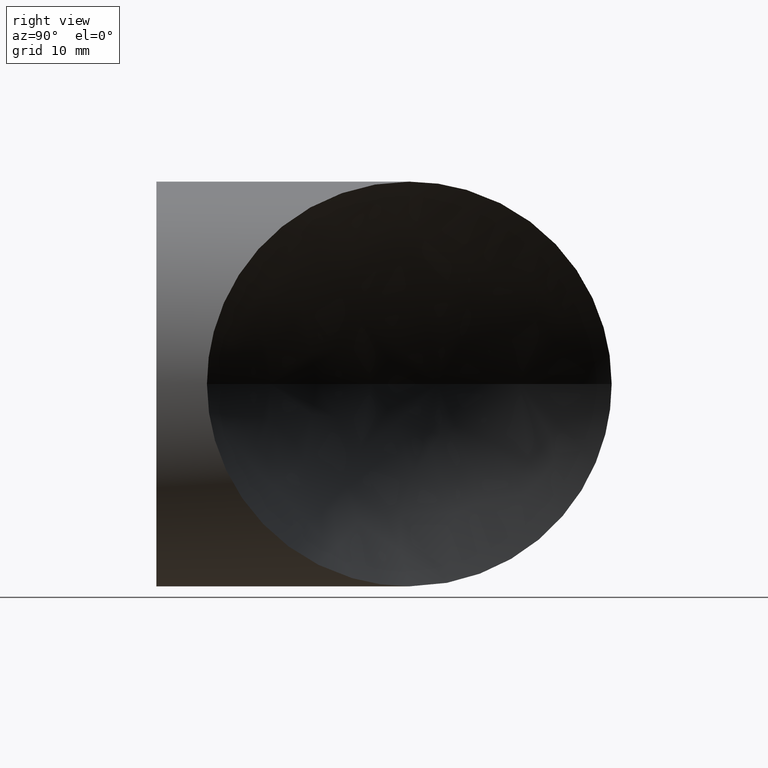
[diagram: clean part render]
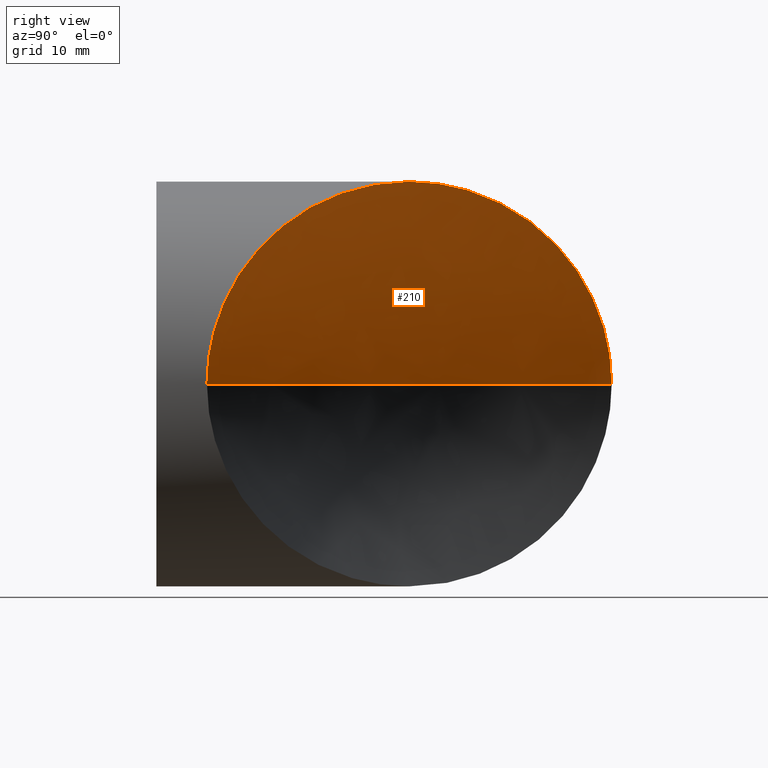
[diagram: same view with one face highlighted and labeled with its STEP entity id]
A machine part, right view. The second image highlights one B-rep face of the part: STEP entity #210.
In plain terms, the highlighted face is a freeform B-spline surface patch.
Its self-contained STEP definition (entity closure, byte-faithful):
#4 = CARTESIAN_POINT ( 'NONE',  ( 23.11608779368936339, 8.633912206318735016, 10.53705452664367748 ) ) ;
#9 = CARTESIAN_POINT ( 'NONE',  ( -24.91912955028689680, 56.66912955033638610, 5.016703429672753067 ) ) ;
#12 = B_SPLINE_CURVE_WITH_KNOTS ( 'NONE', 3,
 ( #603, #735, #359, #289, #422, #696, #9, #504, #90, #510, #171, #314, #631, #231, #701, #706, #307, #768, #840, #522, #109, #585, #453, #534, #127, #601, #829, #491, #677, #616, #686, #560 ),
 .UNSPECIFIED., .F., .F.,
 ( 4, 2, 2, 2, 2, 2, 2, 2, 2, 2, 2, 2, 2, 2, 2, 4 ),
 ( 0.04810272725895906737, 0.04960341340593291820, 0.05110409955290677597, 0.05410547184685447764, 0.05560615799382832847, 0.05710684414080217930, 0.06010821643474988096, 0.06160890258172372486, 0.06310958872869756875, 0.06611096102264527041, 0.07211370561054067374, 0.07811645019843607707, 0.08411919478633148040, 0.08712056708027918206, 0.09012193937422688372, 0.09612468396212230093 ),
 .UNSPECIFIED. ) ;
#22 = CARTESIAN_POINT ( 'NONE',  ( -1.517883041479706208E-13, 18.89668560001696918, -2.373101715136272105E-12 ) ) ;
#36 = CARTESIAN_POINT ( 'NONE',  ( -4.343747583845909616E-12, 31.75000000003258549, 25.39999999999973568 ) ) ;
#44 = CARTESIAN_POINT ( 'NONE',  ( 18.75366693860043554, 12.99633306141087985, 17.21739479121827898 ) ) ;
#69 = EDGE_CURVE ( 'NONE', #303, #342, #370, .T. ) ;
#80 = CARTESIAN_POINT ( 'NONE',  ( 23.49180749685926983, 8.258192503148499952, 9.670471214657705872 ) ) ;
#90 = CARTESIAN_POINT ( 'NONE',  ( -24.44232522460061929, 56.19232522465010504, 6.926193841207946456 ) ) ;
#109 = CARTESIAN_POINT ( 'NONE',  ( -17.60734394690690507, 49.35734394695076332, 18.37816237363596272 ) ) ;
#111 = FACE_OUTER_BOUND ( 'NONE', #583, .T. ) ;
#127 = CARTESIAN_POINT ( 'NONE',  ( -9.862800616184090430, 41.61280061622073134, 23.45310829498336957 ) ) ;
#131 = CARTESIAN_POINT ( 'NONE',  ( 2.858770735336378710, 28.89122926468965247, 25.24882967334772843 ) ) ;
#140 = ORIENTED_EDGE ( 'NONE', *, *, #297, .F. ) ;
#149 = VERTEX_POINT ( 'NONE', #232 ) ;
#165 = CARTESIAN_POINT ( 'NONE',  ( 24.45451196593075593, 7.295488034076068828, 6.935761289269316343 ) ) ;
#171 = CARTESIAN_POINT ( 'NONE',  ( -24.00169820278755139, 55.75169820283742439, 8.325231285725502417 ) ) ;
#174 =( BOUNDED_SURFACE ( )  B_SPLINE_SURFACE ( 2, 3, ( 
 ( #851, #374, #711, #319 ),
 ( #511, #838, #772, #22 ),
 ( #518, #438, #382, #635 ) ),
 .UNSPECIFIED., .F., .F., .F. ) 
 B_SPLINE_SURFACE_WITH_KNOTS ( ( 3, 3 ),
 ( 4, 4 ),
 ( 0.4962049995256900825, 0.4987551592069660034 ),
 ( 0.0000000000000000000, 1.000000000000000000 ),
 .UNSPECIFIED. ) 
 GEOMETRIC_REPRESENTATION_ITEM ( )  RATIONAL_B_SPLINE_SURFACE ( (
 ( 1.000000000000000000, 0.9761968358346008179, 0.9761968358346008179, 1.000000000000000000),
 ( 1.000000000000000000, 0.9761968358346008179, 0.9761968358346008179, 1.000000000000000000),
 ( 1.000000000000000000, 0.9761968358346008179, 0.9761968358346008179, 1.000000000000000000) ) ) 
 REPRESENTATION_ITEM ( '' )  SURFACE ( )  );
#192 = CARTESIAN_POINT ( 'NONE',  ( -25.39999999999913527, 57.15000000004933156, -3.778634764336981084E-12 ) ) ;
#204 = CARTESIAN_POINT ( 'NONE',  ( 12.84298988541444864, 18.90701011460226511, 21.91716930012565356 ) ) ;
#210 = ADVANCED_FACE ( 'NONE', ( #111 ), #174, .T. ) ;
#224 = CARTESIAN_POINT ( 'NONE',  ( 25.39999999999953673, 6.350000000006544632, 1.008915357888921172 ) ) ;
#226 = CARTESIAN_POINT ( 'NONE',  ( 22.91856478368881511, 8.831435216319798442, 10.95957008676527700 ) ) ;
#231 = CARTESIAN_POINT ( 'NONE',  ( -22.50743737487468366, 54.25743737492236107, 11.78087464265472128 ) ) ;
#232 = CARTESIAN_POINT ( 'NONE',  ( -25.39999999999913527, 57.15000000004933156, -3.778634764336981084E-12 ) ) ;
#246 = ORIENTED_EDGE ( 'NONE', *, *, #430, .T. ) ;
#259 = CARTESIAN_POINT ( 'NONE',  ( 25.40000000000046754, 6.350000000005628920, 2.310600058712741191E-11 ) ) ;
#268 = CARTESIAN_POINT ( 'NONE',  ( 13.17241457464497500, 18.57758542537235869, 21.72089280077771178 ) ) ;
#273 = CARTESIAN_POINT ( 'NONE',  ( 20.87945820684569398, 10.87054179316435487, 14.47070441000486340 ) ) ;
#289 = CARTESIAN_POINT ( 'NONE',  ( -25.32415586706389732, 57.07415586711366728, 2.026326229893380404 ) ) ;
#294 = CARTESIAN_POINT ( 'NONE',  ( 25.34003501376936285, 6.409964986235826778, 2.019679683148877469 ) ) ;
#297 = EDGE_CURVE ( 'NONE', #149, #342, #434, .T. ) ;
#303 = VERTEX_POINT ( 'NONE', #36 ) ;
#307 = CARTESIAN_POINT ( 'NONE',  ( -21.60348923600244575, 53.35348923604993843, 13.36597650318471864 ) ) ;
#314 = CARTESIAN_POINT ( 'NONE',  ( -23.50350774278324195, 55.25350774283266730, 9.678279500985645711 ) ) ;
#319 = CARTESIAN_POINT ( 'NONE',  ( -25.70479999999951204, 57.60811440004953710, -3.642919299551294898E-12 ) ) ;
#342 = VERTEX_POINT ( 'NONE', #259 ) ;
#343 = CARTESIAN_POINT ( 'NONE',  ( 14.15460011604927182, 17.59539988396674914, 21.09411549236753558 ) ) ;
#359 = CARTESIAN_POINT ( 'NONE',  ( -25.38498825607588572, 57.13498825612569476, 1.010564004994352949 ) ) ;
#370 = B_SPLINE_CURVE_WITH_KNOTS ( 'NONE', 3,
 ( #736, #798, #533, #131, #540, #803, #872, #542, #666, #204, #268, #734, #343, #399, #469, #669, #44, #868, #471, #273, #405, #877, #702, #226, #4, #80, #566, #561, #165, #836, #810, #294, #224, #626 ),
 .UNSPECIFIED., .F., .F.,
 ( 4, 2, 2, 2, 2, 2, 2, 2, 2, 2, 2, 2, 2, 2, 2, 2, 4 ),
 ( 0.09612468396212230093, 0.09912765318120356217, 0.1021306224002848234, 0.1081365608384473459, 0.1141424992766098684, 0.1156439838861504921, 0.1171454684956911296, 0.1201484377147723770, 0.1261543761529348717, 0.1276558607624755093, 0.1291573453720161191, 0.1321603145910973665, 0.1336617992006380040, 0.1351632838101786138, 0.1381662530292598612, 0.1411692222483411085, 0.1441721914674223282 ),
 .UNSPECIFIED. ) ;
#374 = CARTESIAN_POINT ( 'NONE',  ( -22.04048544500165363, 57.60811440004954420, 27.17898011060574959 ) ) ;
#382 = CARTESIAN_POINT ( 'NONE',  ( 25.70479999999900045, 6.198514400005624481, 4.538667477538768757 ) ) ;
#392 = CARTESIAN_POINT ( 'NONE',  ( 25.40000000000046754, 6.350000000005628920, 2.310600058712741191E-11 ) ) ;
#399 = CARTESIAN_POINT ( 'NONE',  ( 15.12322275977875030, 16.62677724023642511, 20.42218853993120220 ) ) ;
#405 = CARTESIAN_POINT ( 'NONE',  ( 21.12816750881075123, 10.62183249119944861, 14.10527043395201829 ) ) ;
#422 = CARTESIAN_POINT ( 'NONE',  ( -25.27816902003225152, 57.02816902008233058, 2.535475448995691661 ) ) ;
#430 = EDGE_CURVE ( 'NONE', #149, #303, #12, .T. ) ;
#434 = B_SPLINE_CURVE_WITH_KNOTS ( 'NONE', 2,
 ( #192, #459, #392 ),
 .UNSPECIFIED., .F., .F.,
 ( 3, 3 ),
 ( 0.4962201190494920922, 0.4987400396831639937 ),
 .UNSPECIFIED. ) ;
#438 = CARTESIAN_POINT ( 'NONE',  ( 26.90677303464002179, 6.198514400005624481, 8.915282984488634099 ) ) ;
#453 = CARTESIAN_POINT ( 'NONE',  ( -13.85126286655807171, 45.60126286659910022, 21.34471803107061660 ) ) ;
#459 = CARTESIAN_POINT ( 'NONE',  ( 3.816391647148975608E-13, 19.05000000001672689, 0.0000000000000000000 ) ) ;
#469 = CARTESIAN_POINT ( 'NONE',  ( 15.75322996234837447, 15.99677003766594297, 19.94088469937085861 ) ) ;
#471 = CARTESIAN_POINT ( 'NONE',  ( 20.36646652801032076, 11.38353347200018995, 15.18420568540170557 ) ) ;
#491 = CARTESIAN_POINT ( 'NONE',  ( -5.671297475158661783, 37.42129747519129523, 24.76944659085221545 ) ) ;
#504 = CARTESIAN_POINT ( 'NONE',  ( -24.57160009191174765, 56.32160009196092432, 6.452832837949221023 ) ) ;
#510 = CARTESIAN_POINT ( 'NONE',  ( -24.15743513471668535, 55.90743513476594728, 7.862426548025158723 ) ) ;
#511 = CARTESIAN_POINT ( 'NONE',  ( 7.125681820900797270, 18.89668560001696918, 25.94598102964734565 ) ) ;
#518 = CARTESIAN_POINT ( 'NONE',  ( 29.22488681952441070, 6.198514400005624481, 12.81731462864621385 ) ) ;
#522 = CARTESIAN_POINT ( 'NONE',  ( -18.76615306822672835, 50.51615306827064700, 17.20202532302760545 ) ) ;
#533 = CARTESIAN_POINT ( 'NONE',  ( 1.427272103732073028, 30.32272789629522691, 25.37003871366476560 ) ) ;
#534 = CARTESIAN_POINT ( 'NONE',  ( -11.21629007288509605, 42.96629007292380464, 22.83964333839958982 ) ) ;
#540 = CARTESIAN_POINT ( 'NONE',  ( 3.574495887738063704, 28.17550411228712548, 25.15748655172709647 ) ) ;
#542 = CARTESIAN_POINT ( 'NONE',  ( 9.838007526092477306, 21.91199247392712834, 23.46256244877612218 ) ) ;
#560 = CARTESIAN_POINT ( 'NONE',  ( -4.343747583845909616E-12, 31.75000000003258549, 25.39999999999973568 ) ) ;
#561 = CARTESIAN_POINT ( 'NONE',  ( 24.17058905248307710, 7.579410947524475084, 7.866010588764352995 ) ) ;
#566 = CARTESIAN_POINT ( 'NONE',  ( 23.67062844457653981, 8.079371555431473340, 9.224653027104404046 ) ) ;
#583 = EDGE_LOOP ( 'NONE', ( #140, #246, #873 ) ) ;
#585 = CARTESIAN_POINT ( 'NONE',  ( -15.13432881798463825, 46.88432881802634000, 20.46283226548875334 ) ) ;
#601 = CARTESIAN_POINT ( 'NONE',  ( -7.783134573733062389, 39.53313457376789586, 24.18932817132038693 ) ) ;
#603 = CARTESIAN_POINT ( 'NONE',  ( -25.39999999999913527, 57.15000000004933156, -3.778634764336981084E-12 ) ) ;
#616 = CARTESIAN_POINT ( 'NONE',  ( -2.844736194571884536, 34.59473619460251825, 25.28091507878869848 ) ) ;
#626 = CARTESIAN_POINT ( 'NONE',  ( 25.40000000000046754, 6.350000000005628920, 2.310600058712741191E-11 ) ) ;
#631 = CARTESIAN_POINT ( 'NONE',  ( -23.12815982557323480, 54.87815982562143802, 10.54055032728178176 ) ) ;
#635 = CARTESIAN_POINT ( 'NONE',  ( 25.70479999999921006, 6.198514400005624481, -1.103284130721249312E-12 ) ) ;
#666 = CARTESIAN_POINT ( 'NONE',  ( 11.18778706063290151, 20.56221293938524752, 22.85407206433040272 ) ) ;
#669 = CARTESIAN_POINT ( 'NONE',  ( 17.59307431041004932, 14.15692568960265874, 18.39065751052247322 ) ) ;
#677 = CARTESIAN_POINT ( 'NONE',  ( -4.965716845978517924, 36.71571684601099861, 24.92019169298185233 ) ) ;
#686 = CARTESIAN_POINT ( 'NONE',  ( -1.425126059627978448, 33.17512605965756478, 25.39999999999977121 ) ) ;
#696 = CARTESIAN_POINT ( 'NONE',  ( -25.09726571099270487, 56.84726571104263115, 4.037958997174627918 ) ) ;
#701 = CARTESIAN_POINT ( 'NONE',  ( -22.29087400770605143, 54.04087400775357253, 12.18543310410124114 ) ) ;
#702 = CARTESIAN_POINT ( 'NONE',  ( 22.29898126051599405, 9.451018739493157739, 12.19699092671893581 ) ) ;
#706 = CARTESIAN_POINT ( 'NONE',  ( -21.83922973555666758, 53.58922973560379432, 12.97751472815692075 ) ) ;
#711 = CARTESIAN_POINT ( 'NONE',  ( -25.70480000000016929, 57.60811440004954420, 13.83650449630159862 ) ) ;
#734 = CARTESIAN_POINT ( 'NONE',  ( 13.82786354781533866, 17.92213645220141771, 21.30961941218556888 ) ) ;
#735 = CARTESIAN_POINT ( 'NONE',  ( -25.40000000000187441, 57.15000000005161240, 0.5044304829905480458 ) ) ;
#736 = CARTESIAN_POINT ( 'NONE',  ( -4.343747583845909616E-12, 31.75000000003258549, 25.39999999999973568 ) ) ;
#768 = CARTESIAN_POINT ( 'NONE',  ( -20.87748549290746780, 52.62748549295434231, 14.49451274477297247 ) ) ;
#772 = CARTESIAN_POINT ( 'NONE',  ( -5.809827148473375035E-13, 18.89668560001696918, 9.187585986920183245 ) ) ;
#798 = CARTESIAN_POINT ( 'NONE',  ( 0.7129421596522541593, 31.03705784037545712, 25.40000000000013358 ) ) ;
#803 = CARTESIAN_POINT ( 'NONE',  ( 5.698947039450785290, 26.05105296057256226, 24.79408406149796562 ) ) ;
#810 = CARTESIAN_POINT ( 'NONE',  ( 25.09710067348774132, 6.652899326517670353, 4.041289188662819498 ) ) ;
#829 = CARTESIAN_POINT ( 'NONE',  ( -7.079510007499043134, 38.82951000753288895, 24.40429547277573619 ) ) ;
#836 = CARTESIAN_POINT ( 'NONE',  ( 24.91773559159261708, 6.832264408413804446, 5.023384630013508989 ) ) ;
#838 = CARTESIAN_POINT ( 'NONE',  ( 2.433143794819188521, 18.89668560001696918, 18.04713154754719540 ) ) ;
#840 = CARTESIAN_POINT ( 'NONE',  ( -20.36696140388468734, 52.11696140393001997, 15.20119821662514781 ) ) ;
#851 = CARTESIAN_POINT ( 'NONE',  ( -14.97352317772282504, 57.60811440004953710, 39.07464743064848278 ) ) ;
#868 = CARTESIAN_POINT ( 'NONE',  ( 20.10158260010155118, 11.64841739990857938, 15.53295033666572245 ) ) ;
#872 = CARTESIAN_POINT ( 'NONE',  ( 7.093618743399783710, 24.65638125662221114, 24.43274036757766154 ) ) ;
#873 = ORIENTED_EDGE ( 'NONE', *, *, #69, .T. ) ;
#877 = CARTESIAN_POINT ( 'NONE',  ( 21.85001223645525670, 9.899987763554307207, 12.98188855474539061 ) ) ;